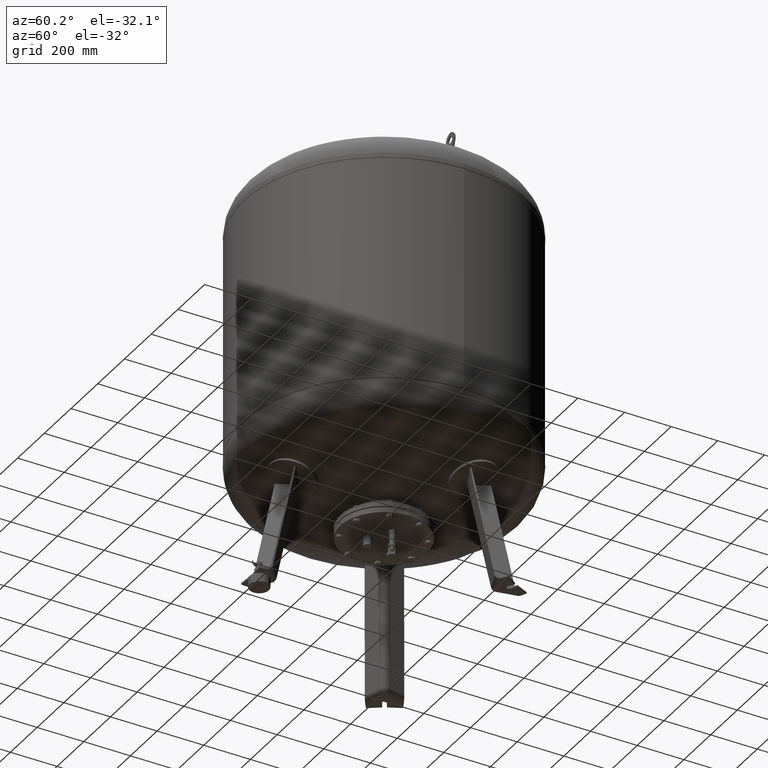
[diagram: clean part render]
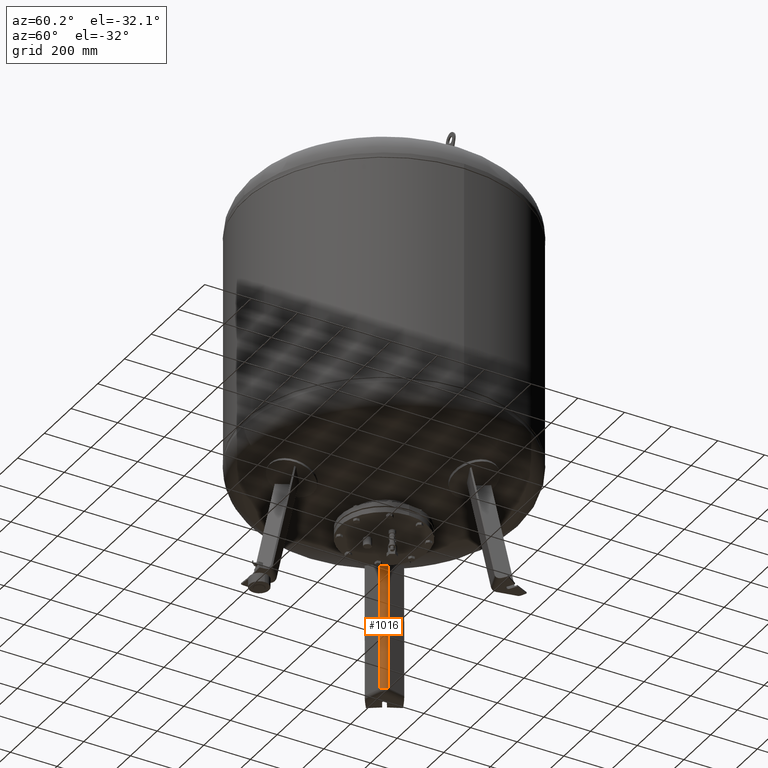
[diagram: same view with one face highlighted and labeled with its STEP entity id]
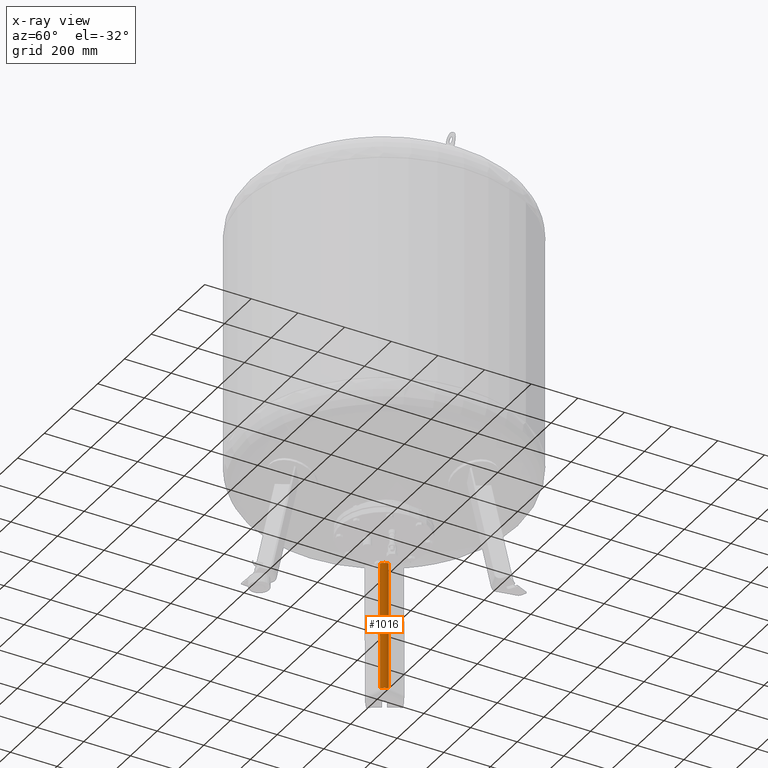
[diagram: x-ray of the same camera — body ghosted, the highlighted face saturated]
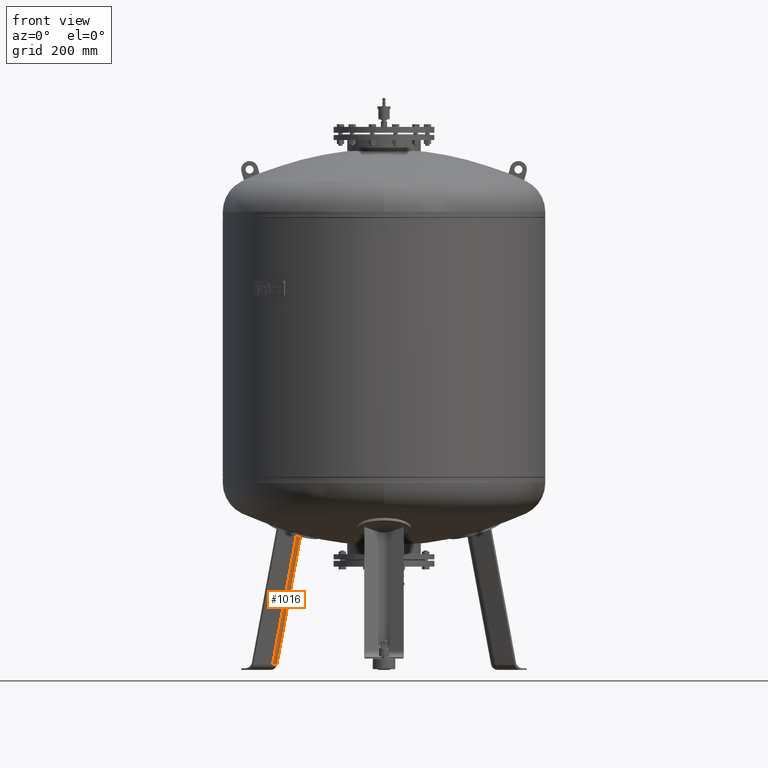
[diagram: same view with one face highlighted and labeled with its STEP entity id]
A machine part, auxiliary view. The second image highlights one B-rep face of the part: STEP entity #1016.
The next image is the same camera in x-ray: the body ghosted, the highlighted face saturated — about 0% of this face is hidden behind the body in this view.
A second angle (front view) of the same face is appended — the face is thin or edge-on in the first view.
In plain terms, the highlighted cylindrical surface (edge-blend (fillet) strip) has radius 25 mm, axis along (0.1801, -0.104, 0.9781).
Its self-contained STEP definition (entity closure, byte-faithful):
#237=CARTESIAN_POINT('',(-401.571559521929200,231.847447988883770,19.802207729555999));
#238=VERTEX_POINT('',#237);
#248=CARTESIAN_POINT('',(-414.642004680756600,220.760904562808210,21.029948423057281));
#249=VERTEX_POINT('',#248);
#250=CARTESIAN_POINT('',(-422.749076294086020,244.074292998056340,24.999999999999993));
#251=DIRECTION('',(-0.180056805991956,0.103955845408880,-0.978147600733806));
#252=DIRECTION('',(0.847100670886274,-0.489073800366903,-0.207911690817760));
#253=AXIS2_PLACEMENT_3D('',#250,#251,#252);
#254=CIRCLE('',#253,24.999999999999993);
#255=EDGE_CURVE('',#238,#249,#254,.T.);
#332=CARTESIAN_POINT('',(-398.505553854202110,248.710057248237460,21.029948423057292));
#333=VERTEX_POINT('',#332);
#380=CARTESIAN_POINT('',(-422.749076294086020,244.074292998056340,24.999999999999993));
#381=DIRECTION('',(-0.180056805991956,0.103955845408880,-0.978147600733806));
#382=DIRECTION('',(0.847100670886274,-0.489073800366903,-0.207911690817760));
#383=AXIS2_PLACEMENT_3D('',#380,#381,#382);
#384=CIRCLE('',#383,24.999999999999993);
#385=EDGE_CURVE('',#333,#238,#384,.T.);
#782=CARTESIAN_POINT('',(-325.379557651966650,169.225206742211500,505.942739782580020));
#783=VERTEX_POINT('',#782);
#793=CARTESIAN_POINT('',(-309.242146051814070,197.173804724745370,505.947959126467590));
#794=VERTEX_POINT('',#793);
#795=CARTESIAN_POINT('',(-309.242146051814070,197.173804724745370,505.947959126467590));
#796=CARTESIAN_POINT('',(-309.163063668117330,196.667362939196920,505.839519935654040));
#797=CARTESIAN_POINT('',(-309.099489876659160,196.156939629008060,505.734934896781850));
#798=CARTESIAN_POINT('',(-308.953981830104850,194.594420953712980,505.429103824092690));
#799=CARTESIAN_POINT('',(-308.922454473519170,193.533735565852770,505.241116411709530));
#800=CARTESIAN_POINT('',(-308.993074655460190,191.412356006654280,504.904132145277800));
#801=CARTESIAN_POINT('',(-309.095270320789890,190.350212576807510,504.754905007621570));
#802=CARTESIAN_POINT('',(-309.431062941992540,188.245614701700670,504.498091049258280));
#803=CARTESIAN_POINT('',(-309.664664000571630,187.203160758028590,504.390505482463710));
#804=CARTESIAN_POINT('',(-310.256175923691220,185.159964409015520,504.218613051497190));
#805=CARTESIAN_POINT('',(-310.614143977389290,184.159062260994690,504.154295924989920));
#806=CARTESIAN_POINT('',(-311.442715335609990,182.219481341795700,504.068989992027010));
#807=CARTESIAN_POINT('',(-311.913332669533700,181.280808341221360,504.048006248182790));
#808=CARTESIAN_POINT('',(-312.951293272684270,179.483150457051720,504.047670768673360));
#809=CARTESIAN_POINT('',(-313.529888674724300,178.605049503326200,504.068378031877960));
#810=CARTESIAN_POINT('',(-314.797560410366370,176.915577940766720,504.153252291123410));
#811=CARTESIAN_POINT('',(-315.486624700107540,176.104198039953130,504.217414209798390));
#812=CARTESIAN_POINT('',(-316.963013097652720,174.568811842687950,504.389117041742050));
#813=CARTESIAN_POINT('',(-317.750447390605020,173.844675763198720,504.496668222473030));
#814=CARTESIAN_POINT('',(-319.408218660953030,172.500705832385050,504.753530564510750));
#815=CARTESIAN_POINT('',(-320.278553154731870,171.880868677880070,504.902840471794430));
#816=CARTESIAN_POINT('',(-322.083676095723150,170.758860268795420,505.240100544597230));
#817=CARTESIAN_POINT('',(-323.019700268691570,170.255921070576330,505.428281643566950));
#818=CARTESIAN_POINT('',(-324.440903625329840,169.604430845692320,505.732921779836370));
#819=CARTESIAN_POINT('',(-324.908133674332930,169.407325679647560,505.835954876961470));
#820=CARTESIAN_POINT('',(-325.379557651966650,169.225206742211500,505.942739782580020));
#821=B_SPLINE_CURVE_WITH_KNOTS('',3,(#795,#796,#797,#798,#799,#800,#801,#802,#803,#804,#805,#806,#807,#808,#809,#810,#811,#812,#813,#814,#815,#816,#817,#818,#819,#820),.UNSPECIFIED.,.F.,.U.,(4,2,2,2,2,2,2,2,2,2,2,2,4),(32.794903054826207,34.316215825106944,37.427572589502290,40.538929353897636,43.650286118292982,46.761642882688328,49.872999647083674,52.989036057429090,56.105072467774505,59.221108878119921,62.337145288465337,65.453181698810752,66.953203267256470),.UNSPECIFIED.);
#822=EDGE_CURVE('',#794,#783,#821,.T.);
#988=CARTESIAN_POINT('',(-398.505553854202110,248.710057248237460,21.029948423057292));
#989=DIRECTION('',(0.180056805991956,-0.103955845408880,0.978147600733806));
#990=VECTOR('',#989,495.751367523291150);
#991=LINE('',#988,#990);
#992=EDGE_CURVE('',#333,#794,#991,.T.);
#999=CARTESIAN_POINT('',(-431.249680748552290,248.982119268116970,-21.179014484433068));
#1000=DIRECTION('',(0.180056805991956,-0.103955845408880,0.978147600733806));
#1001=DIRECTION('',(0.847100670886274,-0.489073800366903,-0.207911690817760));
#1002=AXIS2_PLACEMENT_3D('',#999,#1000,#1001);
#1003=CYLINDRICAL_SURFACE('',#1002,25.0);
#1004=ORIENTED_EDGE('',*,*,#822,.T.);
#1005=CARTESIAN_POINT('',(-325.379557651966650,169.225206742211500,505.942739782580020));
#1006=DIRECTION('',(-0.180056805991956,0.103955845408880,-0.978147600733806));
#1007=VECTOR('',#1006,495.746031576156330);
#1008=LINE('',#1005,#1007);
#1009=EDGE_CURVE('',#783,#249,#1008,.T.);
#1010=ORIENTED_EDGE('',*,*,#1009,.T.);
#1011=ORIENTED_EDGE('',*,*,#255,.F.);
#1012=ORIENTED_EDGE('',*,*,#385,.F.);
#1013=ORIENTED_EDGE('',*,*,#992,.T.);
#1014=EDGE_LOOP('',(#1004,#1010,#1011,#1012,#1013));
#1015=FACE_OUTER_BOUND('',#1014,.T.);
#1016=ADVANCED_FACE('',(#1015),#1003,.T.);